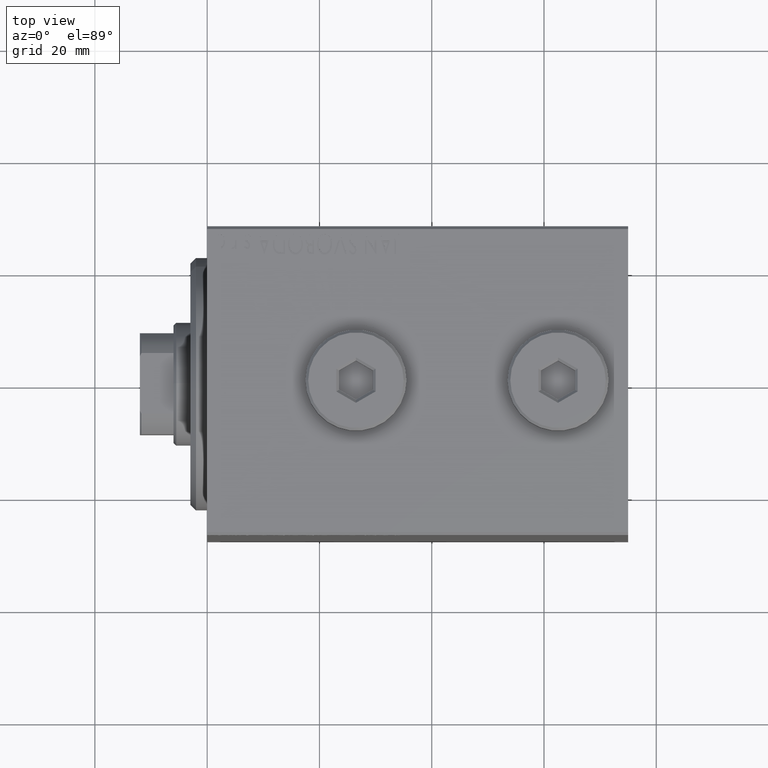
[diagram: clean part render]
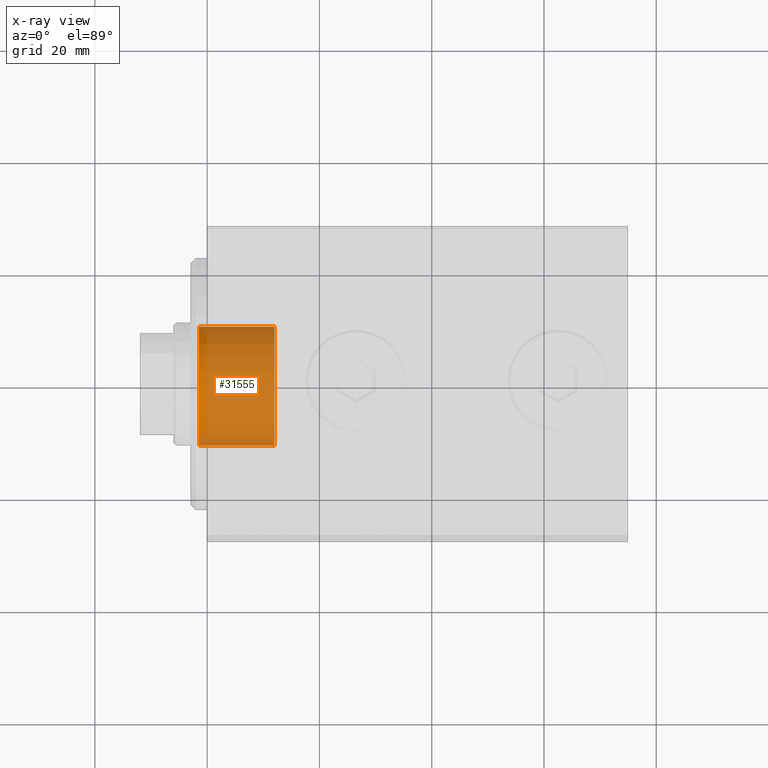
[diagram: x-ray — body ghosted, one internal face saturated and labeled with its STEP entity id]
A machine part, top view, then the same camera in x-ray: the body is ghosted and one INTERNAL B-rep face — a face not visible from any outside direction — is saturated and labeled: STEP entity #31555.
In plain terms, the highlighted cylindrical surface (partial cylindrical patch) has radius 11 mm, axis along (-1, 0, 0).
Its self-contained STEP definition (entity closure, byte-faithful):
#955 = VECTOR ( 'NONE', #25999, 1000.000000000000000 ) ;
#3989 = AXIS2_PLACEMENT_3D ( 'NONE', #30749, #13823, #27531 ) ;
#4109 = CARTESIAN_POINT ( 'NONE',  ( -12.00000000000000000, 0.000000000000000000, 0.000000000000000000 ) ) ;
#4522 = EDGE_CURVE ( 'NONE', #7263, #16259, #44080, .T. ) ;
#6959 = LINE ( 'NONE', #13806, #28828 ) ;
#7263 = VERTEX_POINT ( 'NONE', #35547 ) ;
#9324 = CARTESIAN_POINT ( 'NONE',  ( -12.00000000000000000, 1.347111479062088405E-15, 11.00000000000000000 ) ) ;
#9940 = AXIS2_PLACEMENT_3D ( 'NONE', #4109, #39297, #14611 ) ;
#11881 = AXIS2_PLACEMENT_3D ( 'NONE', #26315, #15841, #40519 ) ;
#12378 = ORIENTED_EDGE ( 'NONE', *, *, #41988, .F. ) ;
#13806 = CARTESIAN_POINT ( 'NONE',  ( -12.00000000000000000, 0.000000000000000000, -11.00000000000000000 ) ) ;
#13823 = DIRECTION ( 'NONE',  ( 1.000000000000000000, 0.000000000000000000, 0.000000000000000000 ) ) ;
#14611 = DIRECTION ( 'NONE',  ( 0.000000000000000000, 0.000000000000000000, -1.000000000000000000 ) ) ;
#15841 = DIRECTION ( 'NONE',  ( 1.000000000000000000, -0.000000000000000000, -0.000000000000000000 ) ) ;
#16259 = VERTEX_POINT ( 'NONE', #34624 ) ;
#16609 = VERTEX_POINT ( 'NONE', #24266 ) ;
#19031 = CYLINDRICAL_SURFACE ( 'NONE', #11881, 11.00000000000000000 ) ;
#19288 = EDGE_CURVE ( 'NONE', #7263, #16609, #28919, .T. ) ;
#19503 = VERTEX_POINT ( 'NONE', #42005 ) ;
#24266 = CARTESIAN_POINT ( 'NONE',  ( -12.00000000000000000, 0.000000000000000000, -11.00000000000000000 ) ) ;
#24410 = CIRCLE ( 'NONE', #3989, 11.00000000000000000 ) ;
#25386 = ORIENTED_EDGE ( 'NONE', *, *, #4522, .T. ) ;
#25999 = DIRECTION ( 'NONE',  ( 1.000000000000000000, -0.000000000000000000, -0.000000000000000000 ) ) ;
#26315 = CARTESIAN_POINT ( 'NONE',  ( -12.00000000000000000, 0.000000000000000000, 0.000000000000000000 ) ) ;
#27531 = DIRECTION ( 'NONE',  ( 0.000000000000000000, 0.000000000000000000, -1.000000000000000000 ) ) ;
#28828 = VECTOR ( 'NONE', #41938, 1000.000000000000000 ) ;
#28919 = CIRCLE ( 'NONE', #9940, 11.00000000000000000 ) ;
#30035 = ORIENTED_EDGE ( 'NONE', *, *, #19288, .F. ) ;
#30749 = CARTESIAN_POINT ( 'NONE',  ( 1.499999999999999556, 0.000000000000000000, 0.000000000000000000 ) ) ;
#31555 = ADVANCED_FACE ( 'NONE', ( #32741 ), #19031, .F. ) ;
#32741 = FACE_OUTER_BOUND ( 'NONE', #36234, .T. ) ;
#34624 = CARTESIAN_POINT ( 'NONE',  ( 1.499999999999999556, 1.347111479062088405E-15, 11.00000000000000000 ) ) ;
#35547 = CARTESIAN_POINT ( 'NONE',  ( -12.00000000000000000, 1.347111479062088405E-15, 11.00000000000000000 ) ) ;
#36140 = ORIENTED_EDGE ( 'NONE', *, *, #37328, .T. ) ;
#36234 = EDGE_LOOP ( 'NONE', ( #30035, #25386, #36140, #12378 ) ) ;
#37328 = EDGE_CURVE ( 'NONE', #16259, #19503, #24410, .T. ) ;
#39297 = DIRECTION ( 'NONE',  ( 1.000000000000000000, 0.000000000000000000, 0.000000000000000000 ) ) ;
#40519 = DIRECTION ( 'NONE',  ( 0.000000000000000000, 0.000000000000000000, -1.000000000000000000 ) ) ;
#41938 = DIRECTION ( 'NONE',  ( 1.000000000000000000, -0.000000000000000000, -0.000000000000000000 ) ) ;
#41988 = EDGE_CURVE ( 'NONE', #16609, #19503, #6959, .T. ) ;
#42005 = CARTESIAN_POINT ( 'NONE',  ( 1.499999999999999556, 0.000000000000000000, -11.00000000000000000 ) ) ;
#44080 = LINE ( 'NONE', #9324, #955 ) ;